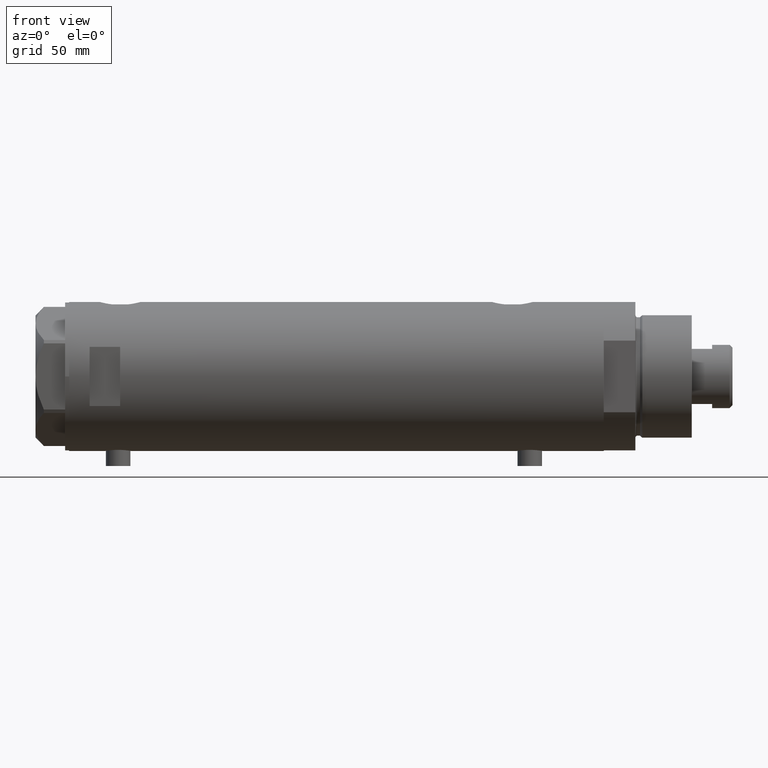
[diagram: clean part render]
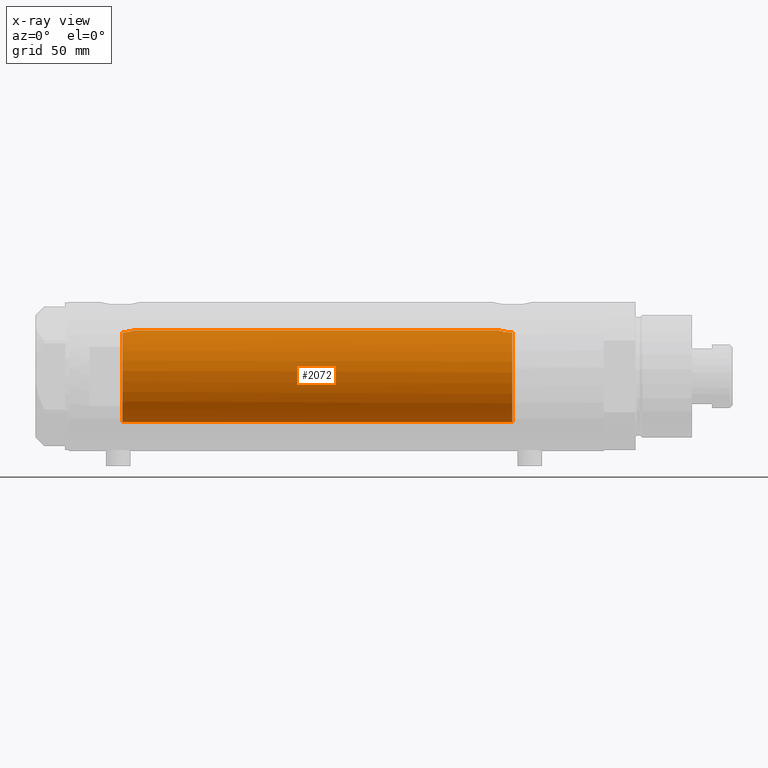
[diagram: x-ray — body ghosted, one internal face saturated and labeled with its STEP entity id]
A machine part, front view, then the same camera in x-ray: the body is ghosted and one INTERNAL B-rep face — a face not visible from any outside direction — is saturated and labeled: STEP entity #2072.
In plain terms, the highlighted cylindrical surface (partial cylindrical patch) has radius 22.5 mm, axis along (1, 0, -0).
Its self-contained STEP definition (entity closure, byte-faithful):
#12 = VERTEX_POINT ( 'NONE', #1606 ) ;
#33 = ORIENTED_EDGE ( 'NONE', *, *, #2316, .T. ) ;
#35 = CARTESIAN_POINT ( 'NONE',  ( 22.48961206562542259, -0.7836756559690470914, 99.43027653274377542 ) ) ;
#142 = EDGE_LOOP ( 'NONE', ( #3150, #2009, #2804, #1528, #4784, #4245, #33 ) ) ;
#199 = CARTESIAN_POINT ( 'NONE',  ( 22.50000000000001066, -0.2154191524768915011, -79.59500000000001307 ) ) ;
#243 = CARTESIAN_POINT ( 'NONE',  ( 21.80246547822148884, -5.562416037700060656, 102.4385862820582105 ) ) ;
#248 = CARTESIAN_POINT ( 'NONE',  ( 21.88647530142792164, -5.220320393727290842, -82.16368086085051914 ) ) ;
#336 = DIRECTION ( 'NONE',  ( -0.000000000000000000, -0.000000000000000000, -1.000000000000000000 ) ) ;
#461 = EDGE_CURVE ( 'NONE', #1574, #4129, #3225, .T. ) ;
#496 = CARTESIAN_POINT ( 'NONE',  ( 22.50000000000001066, -0.3950131823107575491, 99.39500000000002444 ) ) ;
#518 = VERTEX_POINT ( 'NONE', #1626 ) ;
#552 = CARTESIAN_POINT ( 'NONE',  ( 21.79602751566978114, -5.585535159907474068, -82.69020197735672184 ) ) ;
#568 = CARTESIAN_POINT ( 'NONE',  ( 0.000000000000000000, 0.000000000000000000, 130.9749999999999943 ) ) ;
#666 = CIRCLE ( 'NONE', #3381, 22.50000000000000355 ) ;
#764 = CARTESIAN_POINT ( 'NONE',  ( -22.49055119298212091, -0.6642057183733605097, 104.5611530536189946 ) ) ;
#788 = CARTESIAN_POINT ( 'NONE',  ( -22.49878002430316570, -0.2692609109014487134, 104.4859110326966203 ) ) ;
#822 = VECTOR ( 'NONE', #336, 1000.000000000000000 ) ;
#884 = LINE ( 'NONE', #3474, #2304 ) ;
#887 = CARTESIAN_POINT ( 'NONE',  ( 22.50000000000000355, 8.058593785575293352E-16, -79.59499999999999886 ) ) ;
#906 = DIRECTION ( 'NONE',  ( -1.000000000000000000, 0.000000000000000000, 0.000000000000000000 ) ) ;
#932 = CARTESIAN_POINT ( 'NONE',  ( 22.22503367403959018, -3.510871893734216265, 100.4065576783196860 ) ) ;
#951 = CARTESIAN_POINT ( 'NONE',  ( 21.53958216864941733, -6.503568251352485952, 104.9750000000000085 ) ) ;
#979 = CARTESIAN_POINT ( 'NONE',  ( 22.19872433573120318, -3.673198495424856436, 100.5122314324827784 ) ) ;
#1005 = CARTESIAN_POINT ( 'NONE',  ( 21.51635656889892800, -6.580000000000002736, -86.17499999999999716 ) ) ;
#1087 = DIRECTION ( 'NONE',  ( -1.000000000000000000, 0.000000000000000000, 0.000000000000000000 ) ) ;
#1270 = CARTESIAN_POINT ( 'NONE',  ( 22.14407575385478566, -3.989443360685410944, 100.7387256297126044 ) ) ;
#1303 = CARTESIAN_POINT ( 'NONE',  ( 21.98210460142358968, -4.802207463187401437, -81.67152004334177207 ) ) ;
#1344 = CARTESIAN_POINT ( 'NONE',  ( 21.55747828655793441, -6.444296957919020130, 104.5895250978095135 ) ) ;
#1434 = CARTESIAN_POINT ( 'NONE',  ( 0.000000000000000000, 0.000000000000000000, 104.9750000000000085 ) ) ;
#1464 = VERTEX_POINT ( 'NONE', #4504 ) ;
#1473 = DIRECTION ( 'NONE',  ( 0.000000000000000000, 0.000000000000000000, -1.000000000000000000 ) ) ;
#1504 = CARTESIAN_POINT ( 'NONE',  ( -22.50000000000000711, -0.1337055225816284887, 104.4750000000000227 ) ) ;
#1528 = ORIENTED_EDGE ( 'NONE', *, *, #461, .T. ) ;
#1574 = VERTEX_POINT ( 'NONE', #1005 ) ;
#1606 = CARTESIAN_POINT ( 'NONE',  ( -22.44994432064365242, -1.499999999999989342, 104.9750000000000085 ) ) ;
#1626 = CARTESIAN_POINT ( 'NONE',  ( -22.50000000000000355, 3.061617244149333364E-16, 104.4750000000000085 ) ) ;
#1674 = CARTESIAN_POINT ( 'NONE',  ( 21.97180182460414244, -4.853116730831951386, 101.5148793933509097 ) ) ;
#1819 = CARTESIAN_POINT ( 'NONE',  ( -22.50000000000000355, 3.061617244149333364E-16, 104.4750000000000085 ) ) ;
#1820 = AXIS2_PLACEMENT_3D ( 'NONE', #568, #4233, #906 ) ;
#1989 = EDGE_CURVE ( 'NONE', #2694, #1464, #4623, .T. ) ;
#1999 = CARTESIAN_POINT ( 'NONE',  ( 22.44752031034920492, -1.547413406105164313, 99.57656217857973502 ) ) ;
#2006 = CARTESIAN_POINT ( 'NONE',  ( 21.94965745907477483, -4.947937303812817156, -81.83215039555710746 ) ) ;
#2009 = ORIENTED_EDGE ( 'NONE', *, *, #3962, .T. ) ;
#2029 = CARTESIAN_POINT ( 'NONE',  ( 22.14149984669489157, -4.016690124115201321, -80.94569324031263591 ) ) ;
#2072 = ADVANCED_FACE ( 'NONE', ( #3139 ), #2713, .F. ) ;
#2104 = CARTESIAN_POINT ( 'NONE',  ( 21.51635656889893156, -6.580000000000003624, -85.74325681860744908 ) ) ;
#2198 = EDGE_CURVE ( 'NONE', #518, #4129, #3990, .T. ) ;
#2225 = B_SPLINE_CURVE_WITH_KNOTS ( 'NONE', 3,
 ( #4414, #3677, #4111, #764, #4086, #788, #1504, #1819 ),
 .UNSPECIFIED., .F., .F.,
 ( 4, 2, 2, 4 ),
 ( 0.006220300178549098037, 0.007021237910897098686, 0.007421706777071099444, 0.007822175643245100202 ),
 .UNSPECIFIED. ) ;
#2304 = VECTOR ( 'NONE', #4660, 1000.000000000000000 ) ;
#2316 = EDGE_CURVE ( 'NONE', #12, #1464, #666, .T. ) ;
#2355 = CARTESIAN_POINT ( 'NONE',  ( 22.41838729966076471, -1.923945741267792275, 99.67953118595339390 ) ) ;
#2364 = CARTESIAN_POINT ( 'NONE',  ( 22.47508397315214523, -1.079737406574095449, -79.68058251353134835 ) ) ;
#2388 = CARTESIAN_POINT ( 'NONE',  ( 21.68753676189998458, -5.992345198295748965, -83.44827232579069687 ) ) ;
#2408 = CARTESIAN_POINT ( 'NONE',  ( 21.76737372098157408, -5.695831585513579043, -82.87347891606891892 ) ) ;
#2425 = CARTESIAN_POINT ( 'NONE',  ( 22.11568811446340632, -4.143519122923664533, 100.8598050441608933 ) ) ;
#2454 = CARTESIAN_POINT ( 'NONE',  ( 22.40145249794126414, -2.111617392236895707, 99.73995543481973414 ) ) ;
#2694 = VERTEX_POINT ( 'NONE', #3048 ) ;
#2713 = CYLINDRICAL_SURFACE ( 'NONE', #1820, 22.50000000000000355 ) ;
#2744 = CARTESIAN_POINT ( 'NONE',  ( 21.51635656889892800, -6.580000000000002736, -86.17499999999999716 ) ) ;
#2767 = CARTESIAN_POINT ( 'NONE',  ( 22.45982135096092236, -1.357617207441328633, 99.53364426403786069 ) ) ;
#2803 = B_SPLINE_CURVE_WITH_KNOTS ( 'NONE', 3,
 ( #2744, #2104, #3588, #4662, #3873, #2388, #4686, #2408, #552, #4633, #248, #2006, #1303, #4267, #2029, #3124, #4609, #3522, #4214, #2364, #3849, #3503, #199, #887 ),
 .UNSPECIFIED., .F., .F.,
 ( 4, 2, 2, 2, 2, 2, 2, 2, 2, 2, 2, 4 ),
 ( 0.01034583194474684997, 0.01163831905076679468, 0.01293080615678673766, 0.01357704970979672909, 0.01422329326280671880, 0.01486953681581671023, 0.01551578036882670167, 0.01680826747484668107, 0.01810075458086666048, 0.01939324168688663641, 0.02003948523989663305, 0.02068572879290662622 ),
 .UNSPECIFIED. ) ;
#2804 = ORIENTED_EDGE ( 'NONE', *, *, #3488, .F. ) ;
#2917 = DIRECTION ( 'NONE',  ( 0.000000000000000000, 0.000000000000000000, 1.000000000000000000 ) ) ;
#2940 = CARTESIAN_POINT ( 'NONE',  ( 22.50000000000000355, 8.058593785575293352E-16, -79.59499999999999886 ) ) ;
#3048 = CARTESIAN_POINT ( 'NONE',  ( 22.50000000000000355, 0.000000000000000000, 99.39500000000001023 ) ) ;
#3118 = CARTESIAN_POINT ( 'NONE',  ( 21.58601844322714314, -6.349099877921650759, 104.2040481141031734 ) ) ;
#3124 = CARTESIAN_POINT ( 'NONE',  ( 22.25875518649490914, -3.305696985817206723, -80.46958010501985825 ) ) ;
#3139 = FACE_OUTER_BOUND ( 'NONE', #142, .T. ) ;
#3150 = ORIENTED_EDGE ( 'NONE', *, *, #1989, .F. ) ;
#3193 = CARTESIAN_POINT ( 'NONE',  ( 21.70285280737213185, -5.939204755440063543, 103.1162343513558568 ) ) ;
#3225 = CIRCLE ( 'NONE', #3831, 22.50000000000000355 ) ;
#3381 = AXIS2_PLACEMENT_3D ( 'NONE', #1434, #2917, #4417 ) ;
#3474 = CARTESIAN_POINT ( 'NONE',  ( 22.50000000000000355, 2.755455298081544383E-15, 130.9749999999999943 ) ) ;
#3488 = EDGE_CURVE ( 'NONE', #1574, #4747, #2803, .T. ) ;
#3498 = CARTESIAN_POINT ( 'NONE',  ( 21.65869182728110331, -6.096583454856811635, 103.4692047130796055 ) ) ;
#3503 = CARTESIAN_POINT ( 'NONE',  ( 22.49690699366423985, -0.4310528819996797267, -79.60555249859417870 ) ) ;
#3522 = CARTESIAN_POINT ( 'NONE',  ( 22.40278435593408446, -2.127100118045535115, -79.93350395174205403 ) ) ;
#3587 = CARTESIAN_POINT ( 'NONE',  ( -22.50000000000000355, 0.000000000000000000, -86.17499999999999716 ) ) ;
#3588 = CARTESIAN_POINT ( 'NONE',  ( 21.52981735982749711, -6.536420260328984710, -85.30462480407470593 ) ) ;
#3677 = CARTESIAN_POINT ( 'NONE',  ( -22.46419909496995260, -1.286654073380656182, 104.8149905550355072 ) ) ;
#3831 = AXIS2_PLACEMENT_3D ( 'NONE', #4422, #1473, #1087 ) ;
#3849 = CARTESIAN_POINT ( 'NONE',  ( 22.48448975507857384, -0.8627579744204196821, -79.64820172378664154 ) ) ;
#3873 = CARTESIAN_POINT ( 'NONE',  ( 21.61760927586798786, -6.241696587716368150, -84.04779459237282424 ) ) ;
#3962 = EDGE_CURVE ( 'NONE', #2694, #4747, #884, .T. ) ;
#3990 = LINE ( 'NONE', #4700, #822 ) ;
#4086 = CARTESIAN_POINT ( 'NONE',  ( -22.49403986544133716, -0.5345788548553153108, 104.5291278093014569 ) ) ;
#4111 = CARTESIAN_POINT ( 'NONE',  ( -22.47718698759301148, -1.044180983668922202, 104.6878639435232259 ) ) ;
#4129 = VERTEX_POINT ( 'NONE', #3587 ) ;
#4170 = CARTESIAN_POINT ( 'NONE',  ( 22.50000000000000355, 0.000000000000000000, 99.39500000000001023 ) ) ;
#4214 = CARTESIAN_POINT ( 'NONE',  ( 22.43844456282250022, -1.716722304487073414, -79.80814599255656105 ) ) ;
#4233 = DIRECTION ( 'NONE',  ( -0.000000000000000000, -0.000000000000000000, -1.000000000000000000 ) ) ;
#4245 = ORIENTED_EDGE ( 'NONE', *, *, #4607, .F. ) ;
#4260 = CARTESIAN_POINT ( 'NONE',  ( 22.34502592404423638, -2.661921217589551247, 99.94475867852121098 ) ) ;
#4267 = CARTESIAN_POINT ( 'NONE',  ( 22.07839819281284477, -4.346355962099932135, -81.21615912649134827 ) ) ;
#4286 = CARTESIAN_POINT ( 'NONE',  ( 21.85824266975972208, -5.341352339310154740, 102.1129574036161785 ) ) ;
#4414 = CARTESIAN_POINT ( 'NONE',  ( -22.44994432064365242, -1.499999999999989342, 104.9750000000000085 ) ) ;
#4417 = DIRECTION ( 'NONE',  ( 1.000000000000000000, 0.000000000000000000, 0.000000000000000000 ) ) ;
#4422 = CARTESIAN_POINT ( 'NONE',  ( 0.000000000000000000, 0.000000000000000000, -86.17499999999999716 ) ) ;
#4504 = CARTESIAN_POINT ( 'NONE',  ( 21.53958216864941733, -6.503568251352485952, 104.9750000000000085 ) ) ;
#4601 = CARTESIAN_POINT ( 'NONE',  ( 22.30010606974974863, -3.011418659624945704, 100.1117890168580260 ) ) ;
#4607 = EDGE_CURVE ( 'NONE', #12, #518, #2225, .T. ) ;
#4609 = CARTESIAN_POINT ( 'NONE',  ( 22.31324851815826449, -2.920315458573305101, -80.26292883542267020 ) ) ;
#4623 = B_SPLINE_CURVE_WITH_KNOTS ( 'NONE', 3,
 ( #4170, #496, #35, #2767, #1999, #2355, #2454, #4260, #4601, #932, #979, #1270, #2425, #4680, #1674, #4286, #243, #3193, #3498, #3118, #1344, #951 ),
 .UNSPECIFIED., .F., .F.,
 ( 4, 2, 2, 2, 2, 2, 2, 2, 2, 2, 4 ),
 ( 3.191808623944605762E-19, 0.001167753031984886634, 0.001751629547977326049, 0.002335506063969765029, 0.003503259095954657301, 0.004087135611947113195, 0.004671012127939569089, 0.005838765159924480010, 0.007006518191909390930, 0.008174271223894302718, 0.009342024255879214506 ),
 .UNSPECIFIED. ) ;
#4633 = CARTESIAN_POINT ( 'NONE',  ( 21.85557760450272013, -5.347779544816336106, -82.33530284772028551 ) ) ;
#4660 = DIRECTION ( 'NONE',  ( -0.000000000000000000, -0.000000000000000000, -1.000000000000000000 ) ) ;
#4662 = CARTESIAN_POINT ( 'NONE',  ( 21.58054822171799714, -6.366927345060004129, -84.45902244069206688 ) ) ;
#4680 = CARTESIAN_POINT ( 'NONE',  ( 22.03004750576872794, -4.584392313773037131, 101.2389649762145325 ) ) ;
#4686 = CARTESIAN_POINT ( 'NONE',  ( 21.71318796968428444, -5.899027407341884910, -83.25198536342959699 ) ) ;
#4700 = CARTESIAN_POINT ( 'NONE',  ( -22.50000000000000355, 0.000000000000000000, 130.9749999999999943 ) ) ;
#4747 = VERTEX_POINT ( 'NONE', #2940 ) ;
#4784 = ORIENTED_EDGE ( 'NONE', *, *, #2198, .F. ) ;